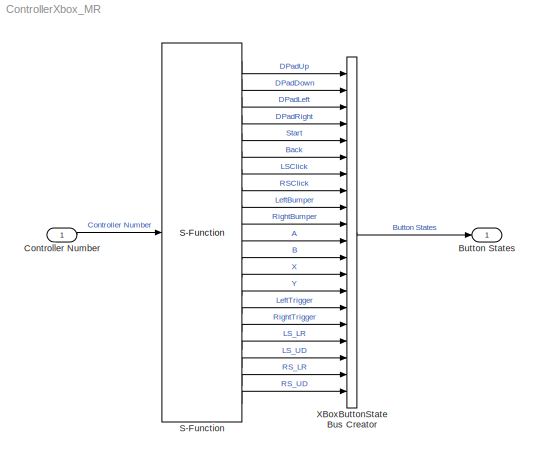
MODEL ControllerXbox_MR
KIND model
BLOCK [Outport] Button States
  IconDisplay = Port number
  OutDataTypeStr = Bus: XBoxButtonStates
  SID = 9
BLOCK [Inport] Controller Number
  IconDisplay = Port number
  SID = 8
BLOCK [S-Function] S-Function
  EnableBusSupport = off
  FunctionName = controller_xbox
  Ports = [1, 20]
  SID = 2
BLOCK [BusCreator] XBoxButtonState Bus Creator 
  DisplayOption = bar
  Inputs = 20
  OutDataTypeStr = Bus: XBoxButtonStates
  Ports = [20, 1]
  SID = 10
LINE Controller Number:1 -> S-Function:1
LINE S-Function:1 -> XBoxButtonState Bus Creator :1
LINE S-Function:10 -> XBoxButtonState Bus Creator :10
LINE S-Function:11 -> XBoxButtonState Bus Creator :11
LINE S-Function:12 -> XBoxButtonState Bus Creator :12
LINE S-Function:13 -> XBoxButtonState Bus Creator :13
LINE S-Function:14 -> XBoxButtonState Bus Creator :14
LINE S-Function:15 -> XBoxButtonState Bus Creator :15
LINE S-Function:16 -> XBoxButtonState Bus Creator :16
LINE S-Function:17 -> XBoxButtonState Bus Creator :17
LINE S-Function:18 -> XBoxButtonState Bus Creator :18
LINE S-Function:19 -> XBoxButtonState Bus Creator :19
LINE S-Function:2 -> XBoxButtonState Bus Creator :2
LINE S-Function:20 -> XBoxButtonState Bus Creator :20
LINE S-Function:3 -> XBoxButtonState Bus Creator :3
LINE S-Function:4 -> XBoxButtonState Bus Creator :4
LINE S-Function:5 -> XBoxButtonState Bus Creator :5
LINE S-Function:6 -> XBoxButtonState Bus Creator :6
LINE S-Function:7 -> XBoxButtonState Bus Creator :7
LINE S-Function:8 -> XBoxButtonState Bus Creator :8
LINE S-Function:9 -> XBoxButtonState Bus Creator :9
LINE XBoxButtonState Bus Creator :1 -> Button States:1
